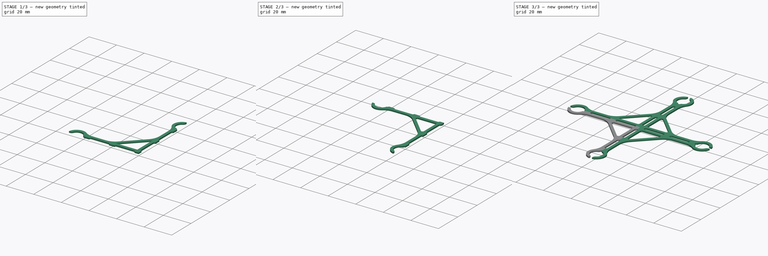
[diagram: build sequence overview — one tinted view per stage of 3, left to right]
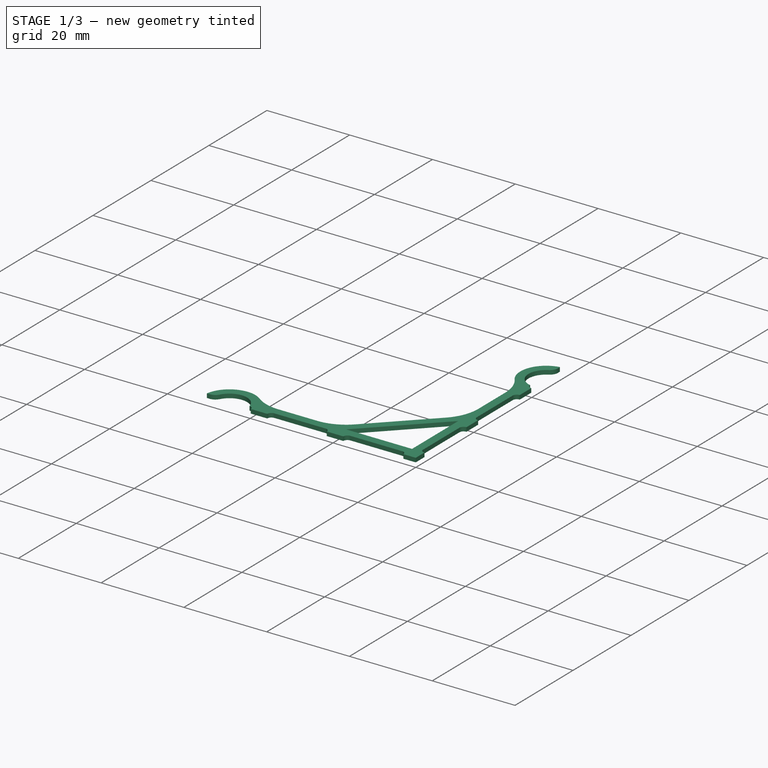
[diagram: stage 1 of 3 — iso view after this stage's code; geometry added in this stage tinted green]
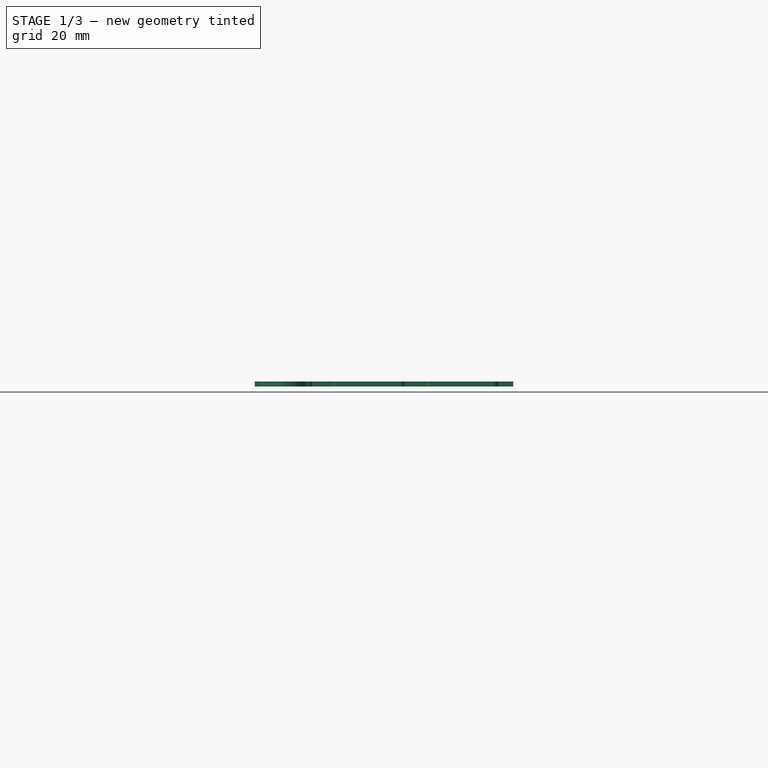
[diagram: stage 1 of 3 — front view after this stage's code; geometry added in this stage tinted green]
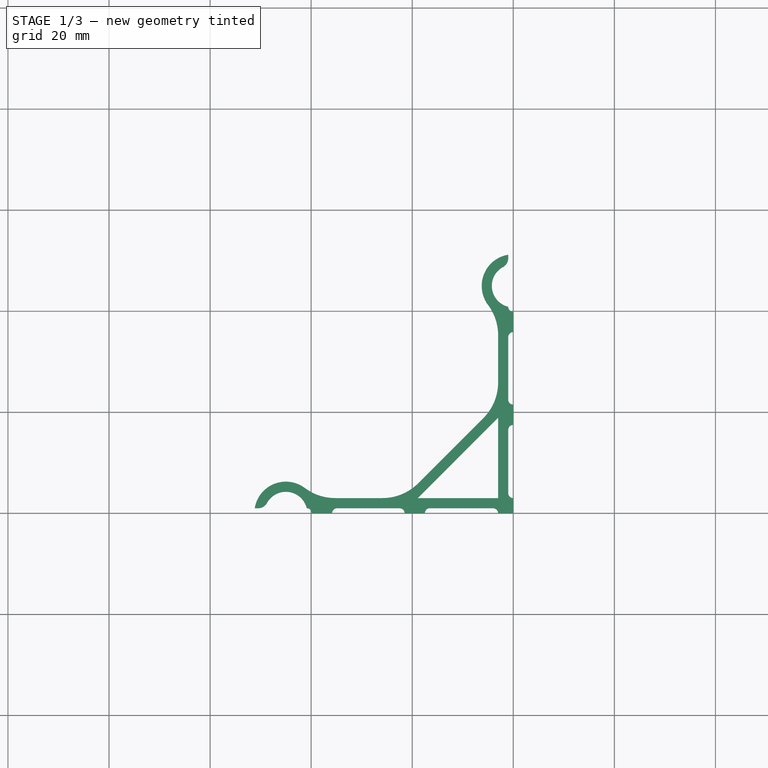
[diagram: stage 1 of 3 — top view after this stage's code; geometry added in this stage tinted green]
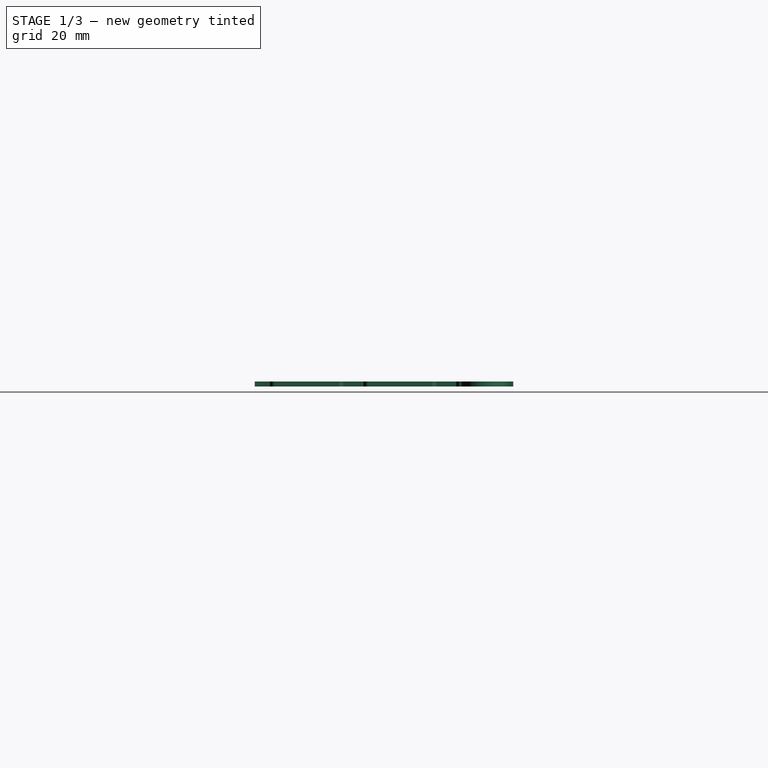
[diagram: stage 1 of 3 — right view after this stage's code; geometry added in this stage tinted green]
FCSTD DOCUMENT  (FreeCAD 0.16R6703 (Git))
Label: micro_kal_v3
License: All rights reserved
LicenseURL: http://en.wikipedia.org/wiki/All_rights_reserved
objects: PartDesign::Fillet×3, Part::Mirroring×3, App::FeaturePython×3, Drawing::FeatureViewPython×3, Drawing::FeatureViewPart×2, Drawing::FeaturePage×2, Sketcher::SketchObject×1, PartDesign::Pad×1, Part::MultiFuse×1
note: 10 computed .brp shape members not serialized (recipe doc carries the construction recipe); baked Part::Feature solids carry a one-line shape summary decoded from their .brp

FEATURE [Sketcher::SketchObject] Sketch
  sketch-geometry (47):
    g0: ArcOfCircle CenterX=-16.5 CenterY=0 CenterZ=0 NormalX=0 NormalY=0 NormalZ=1 Radius=1 StartAngle=1.5708 EndAngle=3.14159
    g1: ArcOfCircle CenterX=-4 CenterY=1e-12 CenterZ=0 NormalX=0 NormalY=0 NormalZ=1 Radius=1 StartAngle=-1e-12 EndAngle=1.5708
    g2: LineSegment StartX=-16.5 StartY=1 StartZ=0 EndX=-4 EndY=1 EndZ=0
    g3: ArcOfCircle CenterX=-22.5 CenterY=0 CenterZ=0 NormalX=0 NormalY=0 NormalZ=1 Radius=1 StartAngle=0 EndAngle=1.5708
    g4: ArcOfCircle CenterX=-34.8693 CenterY=0 CenterZ=0 NormalX=0 NormalY=0 NormalZ=1 Radius=1 StartAngle=1.5708 EndAngle=3.14159
    g5: LineSegment StartX=-22.5 StartY=1 StartZ=0 EndX=-34.8693 EndY=1 EndZ=0
    g6: LineSegment [constr] StartX=-16.5 StartY=1 StartZ=0 EndX=-16.5 EndY=0 EndZ=0
    g7: LineSegment StartX=0 StartY=0 StartZ=0 EndX=-3 EndY=0 EndZ=0
    g8: LineSegment StartX=-17.5 StartY=0 StartZ=0 EndX=-21.5 EndY=0 EndZ=0
    g9: ArcOfCircle CenterX=-40.8693 CenterY=0 CenterZ=0 NormalX=0 NormalY=0 NormalZ=1 Radius=1 StartAngle=0 EndAngle=1.5708
    g10: LineSegment StartX=-39.8693 StartY=0 StartZ=0 EndX=-35.8693 EndY=0 EndZ=0
    g11: ArcOfCircle CenterX=-45 CenterY=0 CenterZ=0 NormalX=0 NormalY=0 NormalZ=1 Radius=4.25 StartAngle=0.237521 EndAngle=2.90407
    g12: LineSegment StartX=-49.1307 StartY=1 StartZ=0 EndX=-51.1695 EndY=1 EndZ=0
    g13: ArcOfCircle CenterX=-45 CenterY=0 CenterZ=0 NormalX=0 NormalY=0 NormalZ=1 Radius=6.25 StartAngle=0.500655 EndAngle=2.9809
    g14: LineSegment StartX=-39.5171 StartY=3 StartZ=0 EndX=-21.7487 EndY=3 EndZ=0
    g15: LineSegment StartX=-21.7487 StartY=3 StartZ=0 EndX=-3 EndY=21.7487 EndZ=0
    g16: LineSegment StartX=-3 StartY=21.7487 StartZ=0 EndX=-3 EndY=39.5171 EndZ=0
    g17: LineSegment StartX=-3 StartY=3 StartZ=0 EndX=-18.9203 EndY=3 EndZ=0
    g18: LineSegment StartX=-18.9203 StartY=3 StartZ=0 EndX=-3 EndY=18.9203 EndZ=0
    g19: LineSegment StartX=-3 StartY=18.9203 StartZ=0 EndX=-3 EndY=3 EndZ=0
    g20: LineSegment [constr] StartX=-40.8693 StartY=1 StartZ=0 EndX=-40.8693 EndY=0 EndZ=0
    g21: LineSegment [constr] StartX=-12.3744 StartY=12.3744 StartZ=0 EndX=-10.9602 EndY=10.9601 EndZ=0
    g22: ArcOfCircle CenterX=1e-12 CenterY=4 CenterZ=0 NormalX=0 NormalY=0 NormalZ=1 Radius=1 StartAngle=3.14159 EndAngle=4.71239
    g23: ArcOfCircle CenterX=0 CenterY=16.5 CenterZ=0 NormalX=0 NormalY=0 NormalZ=1 Radius=1 StartAngle=1.5708 EndAngle=3.14159
    g24: LineSegment StartX=-1 StartY=4 StartZ=0 EndX=-1 EndY=16.5 EndZ=0
    g25: ArcOfCircle CenterX=0 CenterY=22.5 CenterZ=0 NormalX=0 NormalY=0 NormalZ=1 Radius=1 StartAngle=3.14159 EndAngle=4.71239
    g26: ArcOfCircle CenterX=0 CenterY=34.8693 CenterZ=0 NormalX=0 NormalY=0 NormalZ=1 Radius=1 StartAngle=1.5708 EndAngle=3.14159
    g27: LineSegment StartX=-1 StartY=22.5 StartZ=0 EndX=-1 EndY=34.8693 EndZ=0
    g28: LineSegment [constr] StartX=-1 StartY=4 StartZ=0 EndX=1e-12 EndY=4 EndZ=0
    g29: LineSegment [constr] StartX=-1 StartY=22.5 StartZ=0 EndX=0 EndY=22.5 EndZ=0
    g30: LineSegment StartX=0 StartY=3 StartZ=0 EndX=0 EndY=0 EndZ=0
    g31: LineSegment StartX=0 StartY=21.5 StartZ=0 EndX=0 EndY=17.5 EndZ=0
    g32: ArcOfCircle CenterX=0 CenterY=45 CenterZ=0 NormalX=0 NormalY=0 NormalZ=1 Radius=4.25 StartAngle=1.80832 EndAngle=4.47487
    g33: ArcOfCircle CenterX=0 CenterY=45 CenterZ=0 NormalX=0 NormalY=0 NormalZ=1 Radius=6.25 StartAngle=1.73149 EndAngle=4.21173
    g34: ArcOfCircle CenterX=0 CenterY=40.8693 CenterZ=0 NormalX=0 NormalY=0 NormalZ=1 Radius=1 StartAngle=3.14159 EndAngle=4.71239
    g35: LineSegment [constr] StartX=-45 StartY=0 StartZ=0 EndX=0 EndY=0 EndZ=0
    g36: LineSegment StartX=0 StartY=39.8693 StartZ=0 EndX=0 EndY=35.8693 EndZ=0
    g37: LineSegment [constr] StartX=-1 StartY=40.8693 StartZ=0 EndX=0 EndY=40.8693 EndZ=0
    g38: LineSegment [constr] StartX=-3 StartY=3 StartZ=0 EndX=-3 EndY=1 EndZ=0
    g39: LineSegment [constr] StartX=-3 StartY=3 StartZ=0 EndX=-1 EndY=3 EndZ=0
    g40: LineSegment [constr] StartX=-34.8693 StartY=1 StartZ=0 EndX=-34.8693 EndY=3 EndZ=0
    g41: LineSegment [constr] StartX=-22.5 StartY=1 StartZ=0 EndX=-22.5 EndY=0 EndZ=0
    g42: LineSegment StartX=-1 StartY=51.1695 StartZ=0 EndX=-1 EndY=49.1307 EndZ=0
    g43: LineSegment [constr] StartX=-1 StartY=34.8693 StartZ=0 EndX=-3 EndY=34.8693 EndZ=0
    g44: LineSegment [constr] StartX=0 StartY=45 StartZ=0 EndX=0 EndY=0 EndZ=0
    g45: LineSegment [constr] StartX=-1 StartY=51.1695 StartZ=0 EndX=0 EndY=51.1695 EndZ=0
    g46: LineSegment [constr] StartX=-51.1695 StartY=1 StartZ=0 EndX=-51.1695 EndY=0 EndZ=0
  constraints (139):
    c: Tangent(g0,g2) = 1.5708
    c: Tangent(g2,g1) = 1.5708
    c: Equal(g0,g1)
    c: PointOnObject(g0,g-1)
    c: Tangent(g3,g5) = -1.5708
    c: Tangent(g5,g4) = -1.5708
    c: Horizontal(g5)
    c: Equal(g3,g4)
    c: PointOnObject(g3,g-1)
    c: DistanceX(g3,g0) = 6
    c: Coincident(g6,g0)
    c: Coincident(g6,g0)
    c: Vertical(g6)
    c: PointOnObject(g1,g-1)
    c: PointOnObject(g0,g-1)
    c: PointOnObject(g3,g-1)
    c: PointOnObject(g4,g-1)
    c: Coincident(g7,g-1)
    c: Coincident(g7,g1)
    c: Coincident(g8,g0)
    c: Coincident(g8,g3)
    c: PointOnObject(g9,g-1)
    c: Radius(g9) = 1
    c: PointOnObject(g9,g-1)
    c: Coincident(g10,g9)
    c: Coincident(g10,g4)
    c: DistanceX(g10,g10) = 4
    c: Radius(g11) = 4.25
    c: PointOnObject(g11,g-1)
    c: Horizontal(g12)
    c: Coincident(g11,g9)
    c: Coincident(g11,g12)
    c: Coincident(g13,g11)
    c: PointOnObject(g13,g12)
    c: Coincident(g12,g13)
    c: Radius(g13) = 6.25
    c: Horizontal(g14)
    c: Coincident(g14,g15)
    c: Coincident(g15,g16)
    c: Vertical(g16)
    c: Coincident(g13,g14)
    c: Horizontal(g17)
    c: Coincident(g17,g18)
    c: Coincident(g18,g19)
    c: Vertical(g19)
    c: Coincident(g17,g19)
    c: Coincident(g20,g9)
    c: Coincident(g20,g9)
    c: Equal(g20,g6)
    c: Parallel(g18,g15)
    c: Vertical(g20)
    c: PointOnObject(g21,g15)
    c: PointOnObject(g21,g18)
    c: Perpendicular(g18,g21)
    c: Distance(g21) = 2
    c: Angle(g-1,g21) = 2.35619
    c: Distance(g-1,g21) = 17.5
    c: Tangent(g22,g24) = 1.5708
    c: Tangent(g24,g23) = 1.5708
    c: Equal(g22,g23)
    c: Tangent(g25,g27) = 1.5708
    c: Tangent(g27,g26) = 1.5708
    c: Equal(g25,g26)
    c: PointOnObject(g25,g-2)
    c: PointOnObject(g25,g-2)
    c: PointOnObject(g26,g-2)
    c: Vertical(g27)
    c: PointOnObject(g23,g-2)
    c: PointOnObject(g23,g-2)
    c: PointOnObject(g22,g-2)
    c: Coincident(g28,g22)
    c: Coincident(g28,g22)
    c: Horizontal(g28)
    c: Coincident(g29,g25)
    c: Coincident(g29,g25)
    c: Equal(g28,g29)
    c: Equal(g29,g6)
    c: Coincident(g30,g22)
    c: Coincident(g30,g-1)
    c: Coincident(g31,g25)
    c: Coincident(g31,g23)
    c: Equal(g30,g7)
    c: Equal(g31,g8)
    c: PointOnObject(g34,g-2)
    c: PointOnObject(g34,g-2)
    c: PointOnObject(g33,g-2)
    c: Coincident(g32,g33)
    c: Equal(g33,g13)
    c: Equal(g32,g11)
    c: Coincident(g35,g11)
    c: Coincident(g35,g-1)
    c: Coincident(g36,g34)
    c: Vertical(g36)
    c: Equal(g36,g10)
    c: Coincident(g37,g34)
    c: Coincident(g37,g34)
    c: Horizontal(g37)
    c: Equal(g37,g29)
    c: PointOnObject(g38,g17)
    c: PointOnObject(g38,g2)
    c: Vertical(g38)
    c: Coincident(g38,g17)
    c: Coincident(g39,g17)
    c: PointOnObject(g39,g24)
    c: Horizontal(g39)
    c: Equal(g38,g39)
    c: DistanceY(g3,g14) = 2
    c: Coincident(g40,g4)
    c: PointOnObject(g40,g14)
    c: Vertical(g40)
    c: Equal(g38,g40)
    c: Coincident(g41,g3)
    c: Coincident(g41,g3)
    c: Equal(g41,g6)
    c: DistanceX(g35,g35) = 45
    c: Vertical(g42)
    c: Coincident(g32,g42)
    c: Coincident(g42,g33)
    c: DistanceX(g7,g7) = 3
    c: Coincident(g33,g16)
    c: Coincident(g32,g34)
    c: Coincident(g43,g26)
    c: PointOnObject(g43,g16)
    c: Horizontal(g43)
    c: Equal(g43,g39)
    c: Coincident(g36,g26)
    c: DistanceX(g2,g2) = 12.5
    c: Equal(g24,g2)
    c: Coincident(g44,g32)
    c: Coincident(g44,g-1)
    c: Equal(g44,g35)
    c: Coincident(g45,g33)
    c: PointOnObject(g45,g-2)
    c: Horizontal(g45)
    c: Coincident(g46,g12)
    c: PointOnObject(g46,g-1)
    c: Vertical(g46)
    c: DistanceY(g46,g46) = 1
    c: Equal(g46,g45)
FEATURE [PartDesign::Pad] Pad
  Length = 1
  Length2 = 100
  Sketch = -> Sketch
  Type = 0
FEATURE [PartDesign::Fillet] Fillet
  Base = -> Pad [Edge38,Edge59]
  Radius = 2
FEATURE [PartDesign::Fillet] Fillet001
  Base = -> Fillet [Edge81,Edge79,Edge77,Edge75]
  Radius = 10
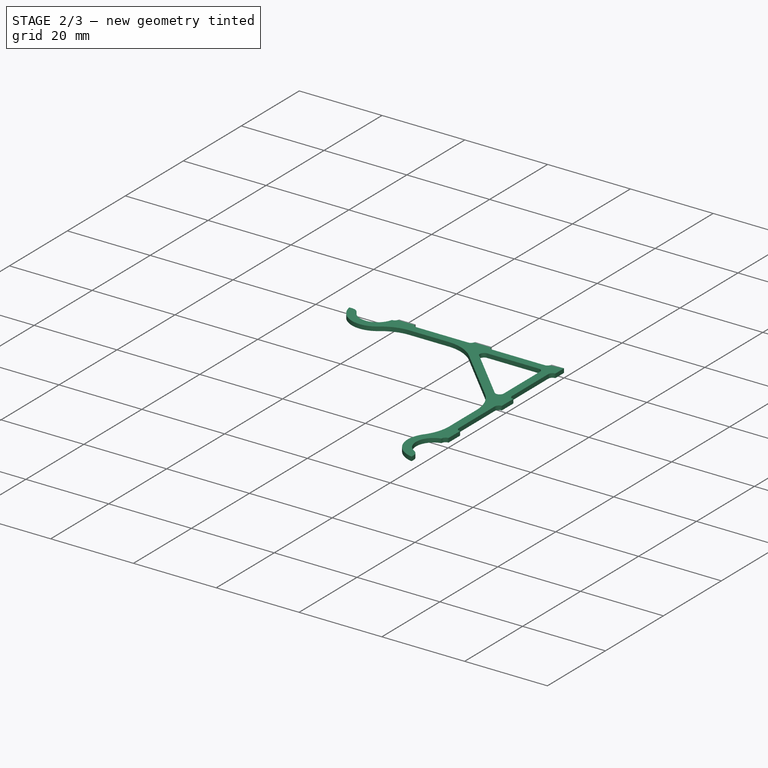
[diagram: stage 2 of 3 — iso view after this stage's code; geometry added in this stage tinted green]
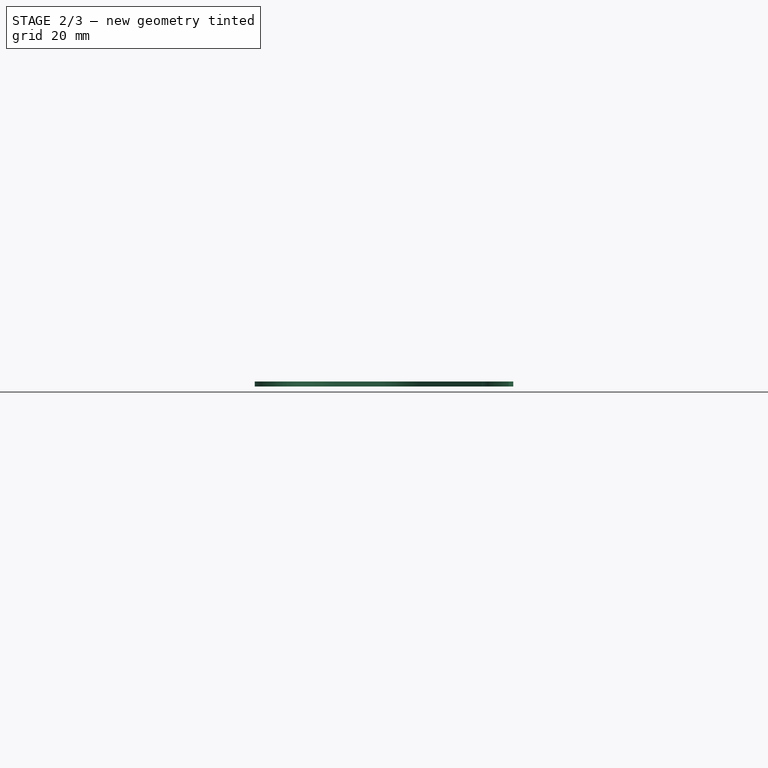
[diagram: stage 2 of 3 — front view after this stage's code; geometry added in this stage tinted green]
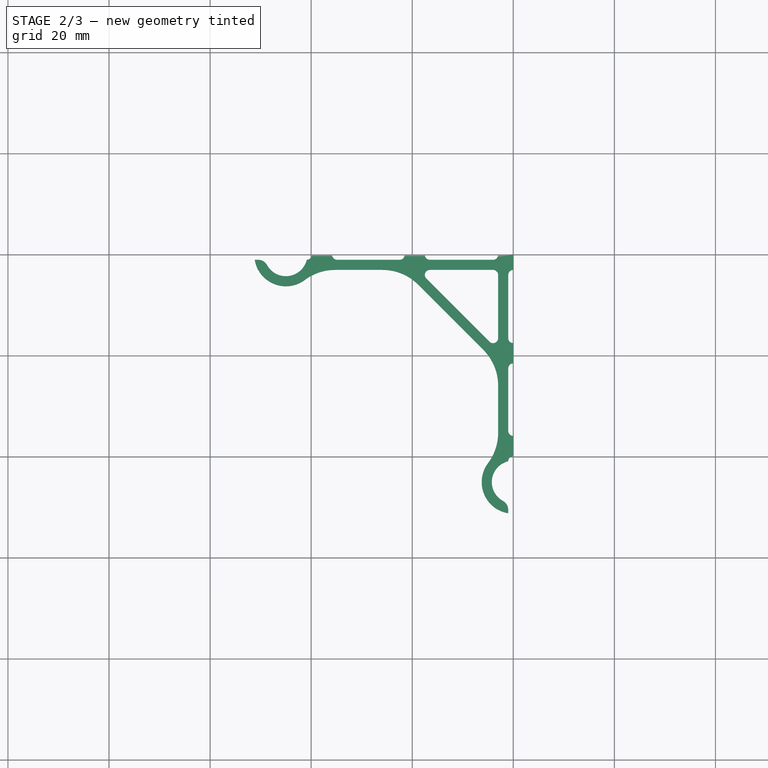
[diagram: stage 2 of 3 — top view after this stage's code; geometry added in this stage tinted green]
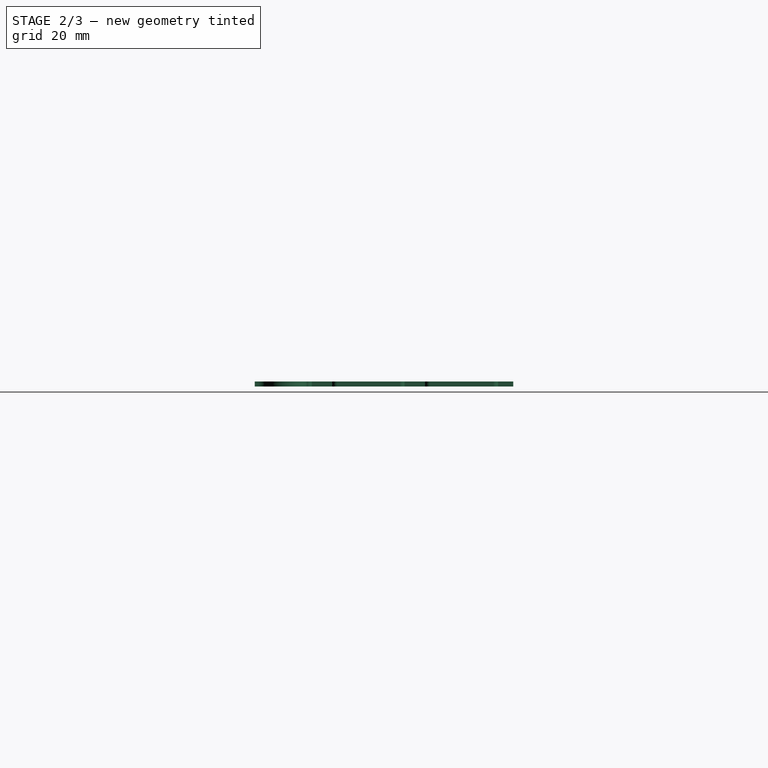
[diagram: stage 2 of 3 — right view after this stage's code; geometry added in this stage tinted green]
FEATURE [PartDesign::Fillet] Fillet002
  Base = -> Fillet001 [Edge109,Edge112,Edge110]
  Radius = 1
FEATURE [Part::Mirroring] Part__Mirroring  label="Fillet002 (Mirror #1)"
  Base = (0,0,0)
  Normal = (0,1,0)
  Source = -> Fillet002
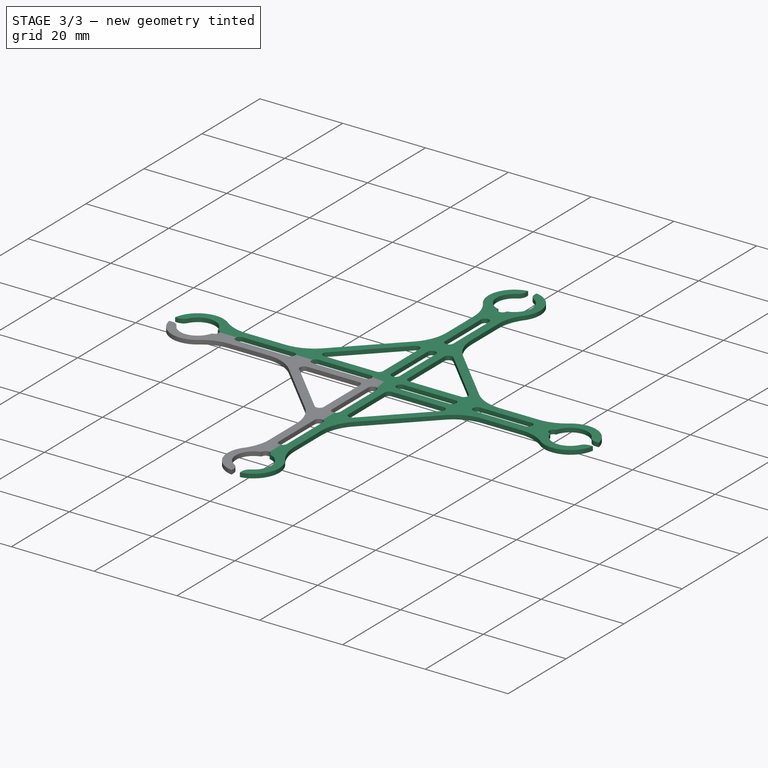
[diagram: stage 3 of 3 — iso view after this stage's code; geometry added in this stage tinted green]
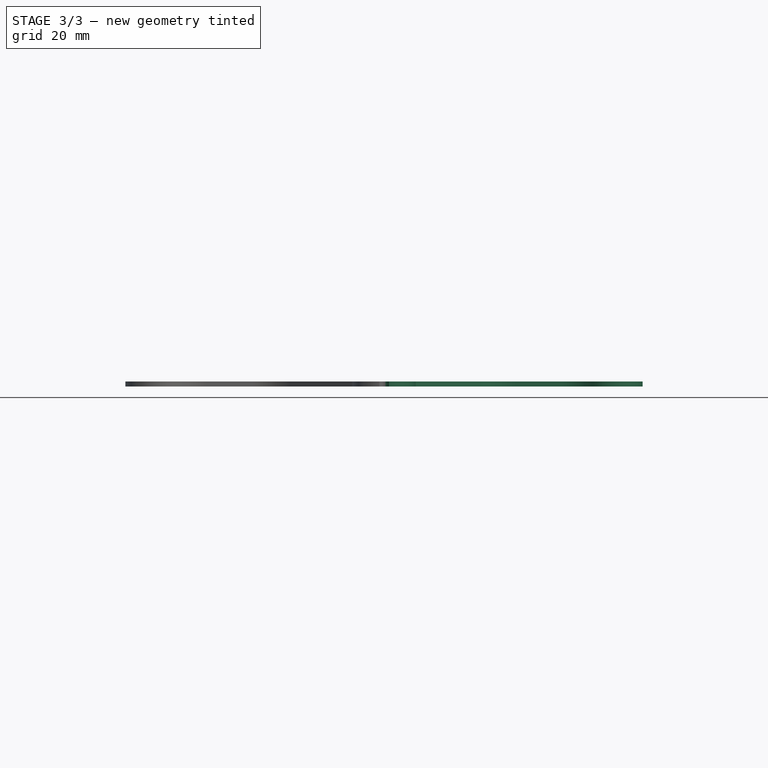
[diagram: stage 3 of 3 — front view after this stage's code; geometry added in this stage tinted green]
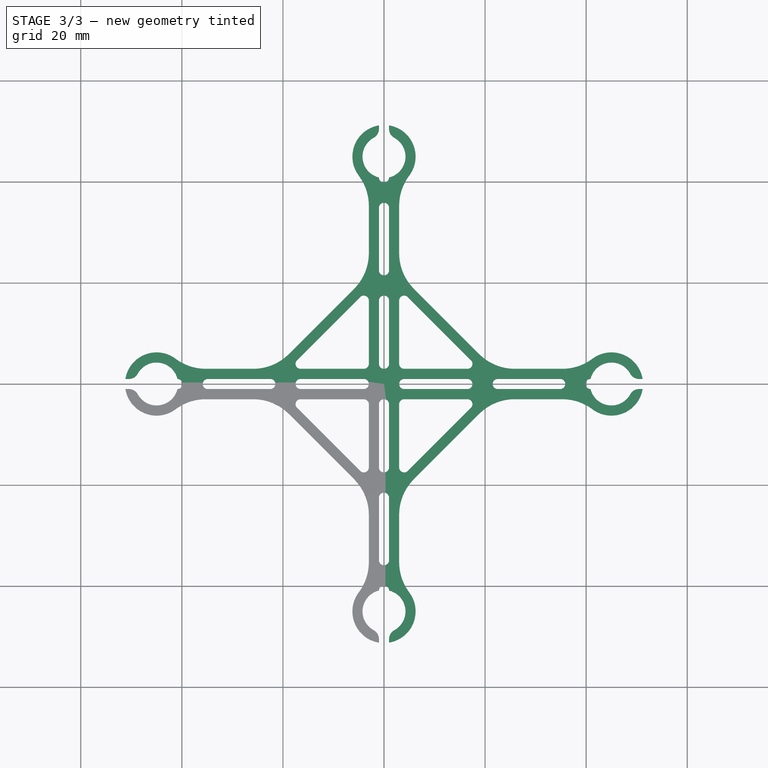
[diagram: stage 3 of 3 — top view after this stage's code; geometry added in this stage tinted green]
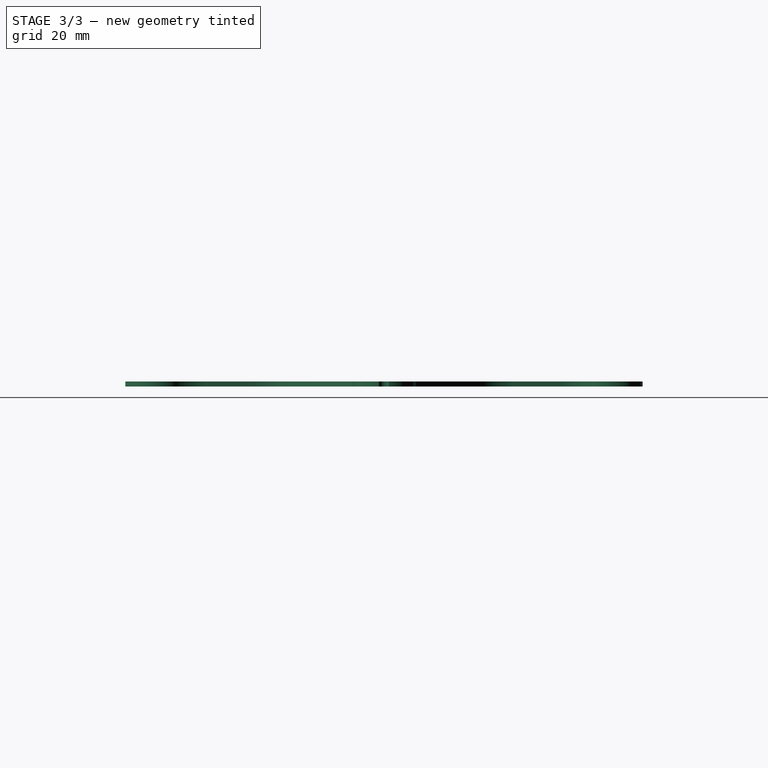
[diagram: stage 3 of 3 — right view after this stage's code; geometry added in this stage tinted green]
FEATURE [Part::Mirroring] Part__Mirroring001  label="Fillet002 (Mirror #2)"
  Base = (0,0,0)
  Normal = (1,0,0)
  Source = -> Part__Mirroring
FEATURE [Part::Mirroring] Part__Mirroring002  label="Fillet002 (Mirror #3)"
  Base = (0,0,0)
  Normal = (0,1,0)
  Source = -> Part__Mirroring001
FEATURE [App::FeaturePython] Dimension  # Draft dimension (typed FeaturePython)
  Dimline = (35.3419,-57.7515,0)
  Direction = (0,0,0)
  Distance = 90
  End = (45,0,1)
  Normal = (0,0,1)
  Start = (-45,0,1)
FEATURE [App::FeaturePython] Dimension001  # Draft dimension (typed FeaturePython)
  Dimline = (61.8508,-2.28659,0)
  Direction = (0,0,0)
  Distance = 2
  End = (11.25,-1,1)
  Normal = (0,0,1)
  Start = (11.25,1,1)
FEATURE [Part::MultiFuse] Fusion
  Shapes = -> [Part__Mirroring002,Part__Mirroring001,Fillet002,Part__Mirroring]
FEATURE [App::FeaturePython] Dimension002  # Draft dimension (typed FeaturePython)
  Dimline = (-53.6329,3,0)
  Direction = (0,0,0)
  Distance = 8.5
  End = (-45,4.25,0)
  Normal = (0,0,1)
  Start = (-45,-4.25,0)
FEATURE [Drawing::FeatureViewPart] View
  Direction = (0,0,1)
  HiddenWidth = 0.15
  LineWidth = 0.35
  Rotation = 0
  ShowHiddenLines = false
  ShowSmoothLines = false
  Source = -> Fusion
  Tolerance = 0.05
  ViewResult = <blob: 7762 chars omitted>
  Visible = true
  X = 100
  Y = 80
FEATURE [Drawing::FeatureViewPython] ViewDimension  # drawing view (typed FeaturePython)
  Direction = (0,0,0)
  FillStyle = 0
  FontSize = 12
  LineStyle = 0
  LineWidth = 0.35
  Rotation = 0
  Source = -> Dimension
  ViewResult = <g id="ViewDimension" transform="rotate(0.0,100.0,80.0) translate(100.0,80.0) scale(1.0,-1.0)"><path d="M -45.0 0.0 L -45.0 -57.7515487671 L 45.0 -57.7515487671 L 45.0 0.0" fill="none" stroke="#0000ff" stroke-width="0.35 px" style="stroke-width:0.35;stroke-miterlimit:4;stroke-dasharray:none" freecad:basepoint1="-45.0 0.0" freecad:basepoint2="45.0 0.0" freecad:dimpoint="-45.0 -57.7515487671"/>\n<path transform="rotate(-0.0,-45.0,-57.7515487671) translate(-45.0,-57.7515487671) scale(2.66666666667,2.66666666667)" freecad:skip="1" fill="#0000ff" stroke="none" style="stroke-miterlimit:4;stroke-dasharray:none" d="M 0 0 L 4 1 L 4 -1 Z"/>\n<path transform="rotate(180.0,45.0,-57.7515487671) translate(45.0,-57.7515487671) scale(2.66666666667,2.66666666667)" freecad:skip="1" fill="#0000ff" stroke="none" style="stroke-miterlimit:4;stroke-dasharray:none" d="M 0 0 L 4 1 L 4 -1 Z"/>\n<text fill="#0000ff" font-size="6.0" style="text-anchor:middle;text-align:center;font-family:" transform="rotate(-0.0,0.0,-56.7515487671) translate(0.0,-56.7515487671) scale(1,-1) " freecad:skip="1">\n90 mm</text>\n</g>
  Visible = true
  X = 100
  Y = 80
FEATURE [Drawing::FeatureViewPython] ViewDimension001  # drawing view (typed FeaturePython)
  Direction = (0,0,0)
  FillStyle = 0
  FontSize = 12
  LineStyle = 0
  LineWidth = 0.35
  Rotation = 0
  Source = -> Dimension001
  ViewResult = <g id="ViewDimension001" transform="rotate(0.0,100.0,80.0) translate(100.0,80.0) scale(1.0,-1.0)"><path d="M 11.8606102167 1.0 L 61.8508491516 1.0 L 61.8508491516 -1.0 L 11.8606102167 -1.0" fill="none" stroke="#0000ff" stroke-width="0.35 px" style="stroke-width:0.35;stroke-miterlimit:4;stroke-dasharray:none" freecad:basepoint1="11.8606102167 1.0" freecad:basepoint2="11.8606102167 -1.0" freecad:dimpoint="61.8508491516 1.0"/>\n<path transform="rotate(90.0,61.8508491516,1.0) translate(61.8508491516,1.0) scale(1.33333333333,1.33333333333)" freecad:skip="1" fill="#0000ff" stroke="none" style="stroke-miterlimit:4;stroke-dasharray:none" d="M 0 0 L 4 1 L 4 -1 Z"/>\n<path transform="rotate(270.0,61.8508491516,-1.0) translate(61.8508491516,-1.0) scale(1.33333333333,1.33333333333)" freecad:skip="1" fill="#0000ff" stroke="none" style="stroke-miterlimit:4;stroke-dasharray:none" d="M 0 0 L 4 1 L 4 -1 Z"/>\n<text fill="#0000ff" font-size="6.0" style="text-anchor:middle;text-align:center;font-family:" transform="rotate(-90.0,63.8508491516,0.0) translate(63.8508491516,0.0) scale(1,-1) " freecad:skip="1">\n2 mm</text>\n</g>
  Visible = true
  X = 100
  Y = 80
FEATURE [Drawing::FeatureViewPython] ViewDimension002  # drawing view (typed FeaturePython)
  Direction = (0,0,0)
  FillStyle = 0
  FontSize = 12
  LineStyle = 0
  LineWidth = 0.35
  Rotation = 0
  Source = -> Dimension002
  ViewResult = <g id="ViewDimension002" transform="rotate(0.0,100.0,80.0) translate(100.0,80.0) scale(1.0,-1.0)"><path d="M -45.0 -4.25 L -53.6328582764 -4.25 L -53.6328582764 4.25 L -45.0 4.25" fill="none" stroke="#0000ff" stroke-width="0.35 px" style="stroke-width:0.35;stroke-miterlimit:4;stroke-dasharray:none" freecad:basepoint1="-45.0 -4.25" freecad:basepoint2="-45.0 4.25" freecad:dimpoint="-53.6328582764 -4.25"/>\n<path transform="rotate(270.0,-53.6328582764,-4.25) translate(-53.6328582764,-4.25) scale(1.33333333333,1.33333333333)" freecad:skip="1" fill="#0000ff" stroke="none" style="stroke-miterlimit:4;stroke-dasharray:none" d="M 0 0 L 4 1 L 4 -1 Z"/>\n<path transform="rotate(450.0,-53.6328582764,4.25) translate(-53.6328582764,4.25) scale(1.33333333333,1.33333333333)" freecad:skip="1" fill="#0000ff" stroke="none" style="stroke-miterlimit:4;stroke-dasharray:none" d="M 0 0 L 4 1 L 4 -1 Z"/>\n<text fill="#0000ff" font-size="6.0" style="text-anchor:middle;text-align:center;font-family:" transform="rotate(90.0,-55.6328582764,0.0) translate(-55.6328582764,0.0) scale(1,-1) " freecad:skip="1">\n8.5 mm</text>\n</g>
  Visible = true
  X = 100
  Y = 80
FEATURE [Drawing::FeaturePage] Page
  EditableTexts = Alberto Romay | 21.09.2016 | 1:1 | n/a | Micro Kal | v3 | 1 | 1
  Group = -> [View,ViewDimension,ViewDimension001,ViewDimension002]
FEATURE [Drawing::FeatureViewPart] View001
  Direction = (0,0,1)
  HiddenWidth = 0.15
  LineWidth = 0.35
  Rotation = 0
  ShowHiddenLines = false
  ShowSmoothLines = false
  Source = -> Fusion
  Tolerance = 0.05
  ViewResult = <blob: 7767 chars omitted>
  Visible = true
  X = 100
  Y = 100
FEATURE [Drawing::FeaturePage] Page001
  EditableTexts = Designed by Name | Date | Scale | Weight | Title | Subtitle | Drawing number | Sheet
  Group = -> [View001]
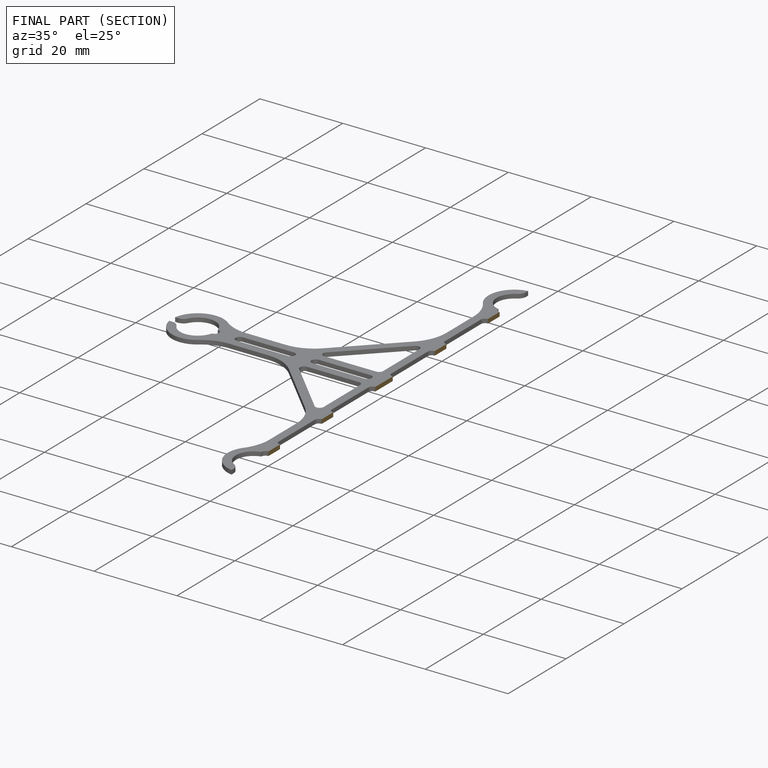
[diagram: finished part — half-section view (interior)]
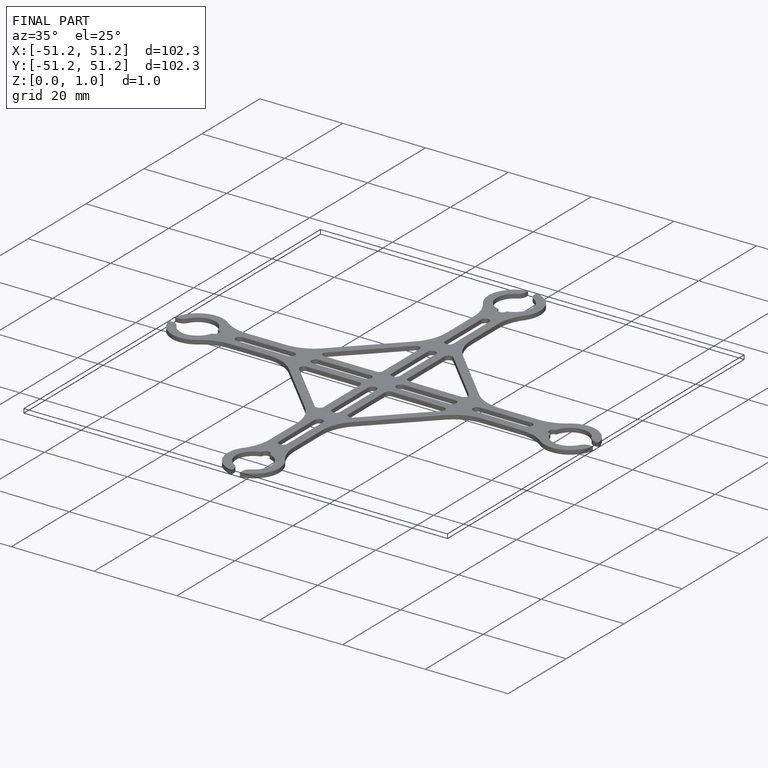
[diagram: finished part — iso view with bounding-box wireframe]
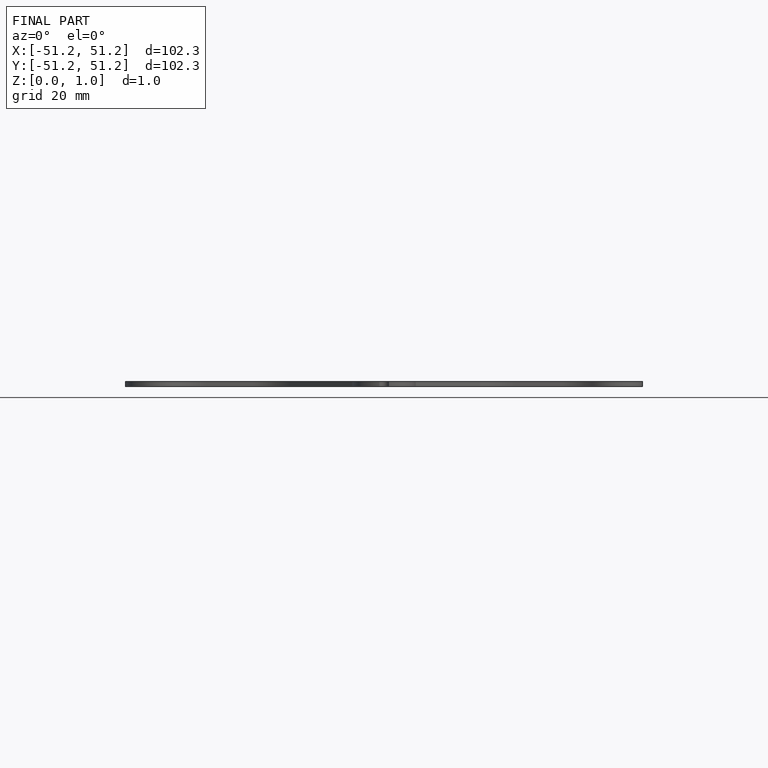
[diagram: finished part — front view with bounding-box wireframe]
